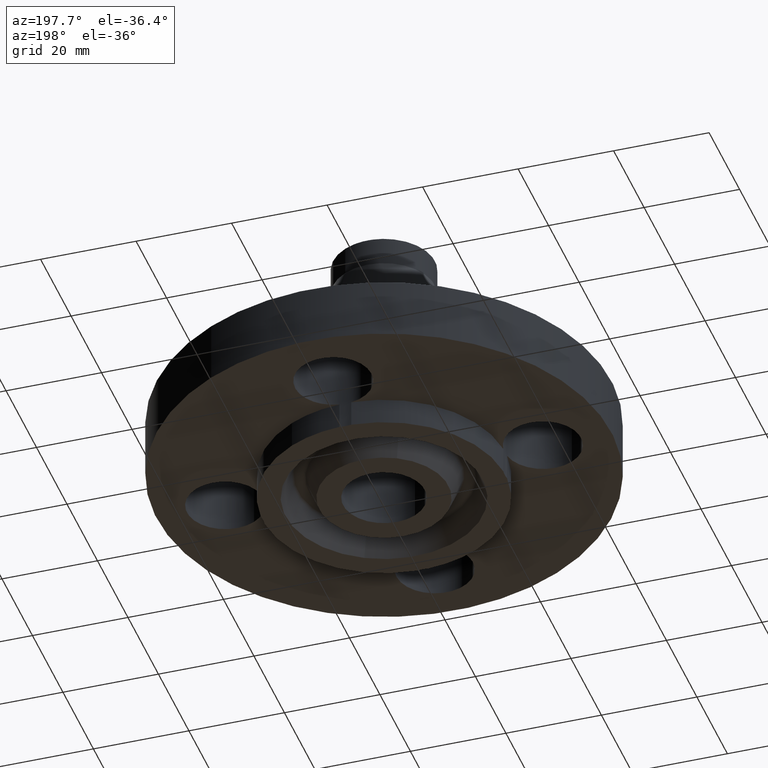
[diagram: clean part render]
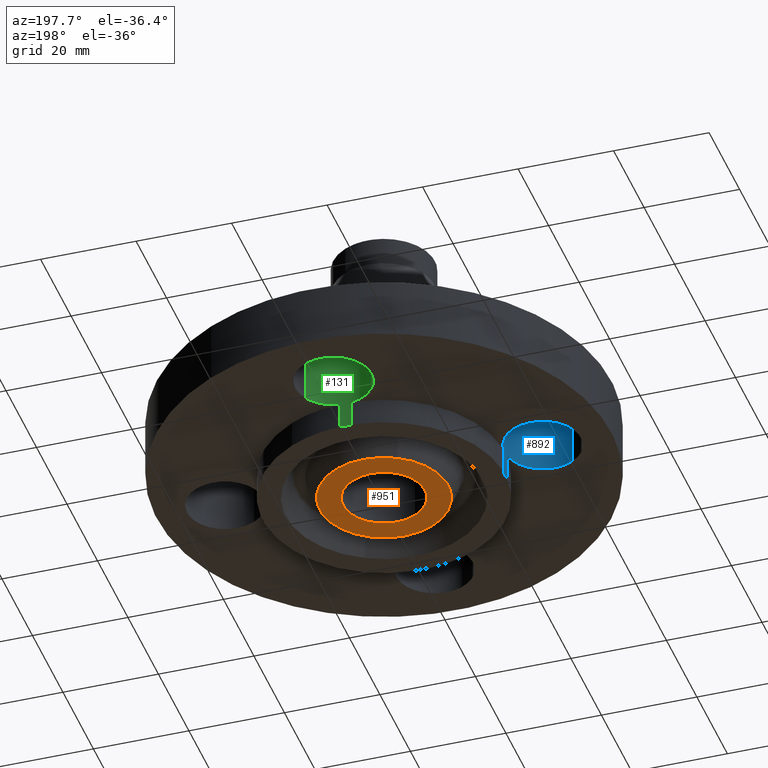
[diagram: same view with three faces highlighted in distinct colors, each labeled with its STEP entity id]
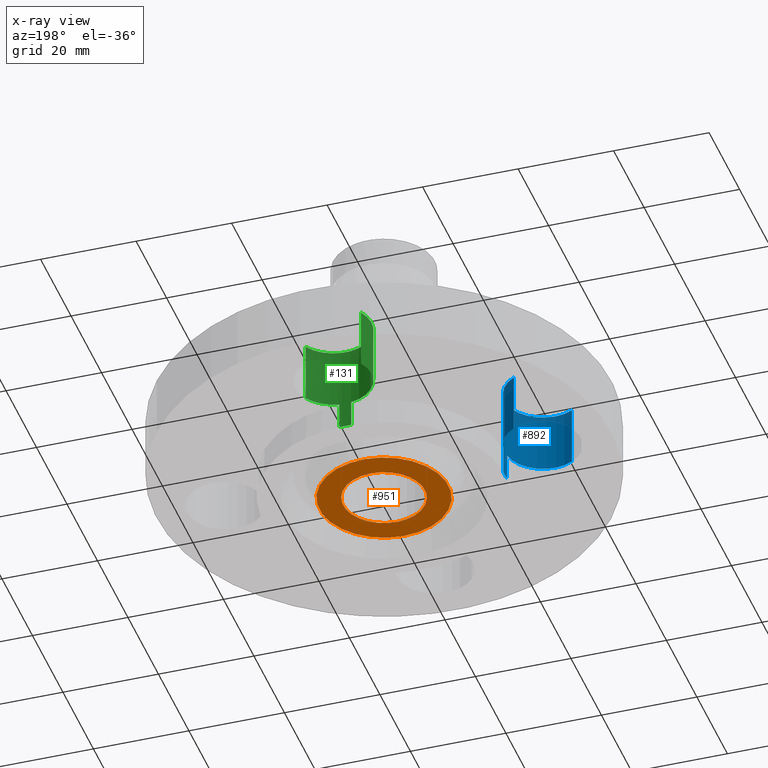
[diagram: x-ray of the same camera — body ghosted, the three highlighted faces saturated]
A machine part, auxiliary view with three faces highlighted in distinct colors.
The next image is the same camera in x-ray (body ghosted, the three faces saturated) — at least one of them is partly hidden behind the body in this view.
Their STEP definitions:

[orange] entity #951 — the highlighted planar face has unit normal (0, 0, -1).
#473=AXIS2_PLACEMENT_3D('Circle Axis2P3D',#471,#472,$) ;
#492=AXIS2_PLACEMENT_3D('Circle Axis2P3D',#490,#491,$) ;
#896=AXIS2_PLACEMENT_3D('Plane Axis2P3D',#893,#894,#895) ;
#931=AXIS2_PLACEMENT_3D('Circle Axis2P3D',#929,#930,$) ;
#940=AXIS2_PLACEMENT_3D('Circle Axis2P3D',#938,#939,$) ;
#468=CARTESIAN_POINT('Vertex',(-0.16156640651,-0.295745323358,-0.219000000001)) ;
#471=CARTESIAN_POINT('Axis2P3D Location',(0.,0.,-0.219000000001)) ;
#475=CARTESIAN_POINT('Vertex',(0.16156640651,0.295745323358,-0.219000000001)) ;
#490=CARTESIAN_POINT('Axis2P3D Location',(0.,0.,-0.219000000001)) ;
#893=CARTESIAN_POINT('Axis2P3D Location',(0.,0.337000000001,-0.219000000001)) ;
#929=CARTESIAN_POINT('Axis2P3D Location',(2.09805925913E-016,0.,-0.219000000001)) ;
#933=CARTESIAN_POINT('Vertex',(-0.254814673769,0.466435131647,-0.219000000001)) ;
#935=CARTESIAN_POINT('Vertex',(0.254814673769,-0.466435131647,-0.219000000001)) ;
#938=CARTESIAN_POINT('Axis2P3D Location',(0.,0.,-0.219000000001)) ;
#472=DIRECTION('Axis2P3D Direction',(0.,0.,-0.0393700787402)) ;
#491=DIRECTION('Axis2P3D Direction',(0.,0.,-0.0393700787402)) ;
#894=DIRECTION('Axis2P3D Direction',(0.,0.,-0.0393700787402)) ;
#895=DIRECTION('Axis2P3D XDirection',(0.0393700787402,0.,0.)) ;
#930=DIRECTION('Axis2P3D Direction',(0.,0.,-0.0393700787402)) ;
#939=DIRECTION('Axis2P3D Direction',(0.,0.,-0.0393700787402)) ;
#944=ORIENTED_EDGE('',*,*,#937,.T.) ;
#945=ORIENTED_EDGE('',*,*,#942,.T.) ;
#948=ORIENTED_EDGE('',*,*,#494,.F.) ;
#949=ORIENTED_EDGE('',*,*,#477,.F.) ;
#950=FACE_BOUND('',#947,.T.) ;
#951=ADVANCED_FACE('PartBody',(#946,#950),#897,.T.) ;
#474=CIRCLE('generated circle',#473,0.337000000001) ;
#493=CIRCLE('generated circle',#492,0.337000000001) ;
#932=CIRCLE('generated circle',#931,0.531500000002) ;
#941=CIRCLE('generated circle',#940,0.531500000002) ;
#477=EDGE_CURVE('',#469,#476,#474,.T.) ;
#494=EDGE_CURVE('',#476,#469,#493,.T.) ;
#937=EDGE_CURVE('',#934,#936,#932,.T.) ;
#942=EDGE_CURVE('',#936,#934,#941,.T.) ;
#943=EDGE_LOOP('',(#944,#945)) ;
#947=EDGE_LOOP('',(#948,#949)) ;
#946=FACE_OUTER_BOUND('',#943,.T.) ;
#897=PLANE('',#896) ;
#469=VERTEX_POINT('',#468) ;
#476=VERTEX_POINT('',#475) ;
#934=VERTEX_POINT('',#933) ;
#936=VERTEX_POINT('',#935) ;

[blue] entity #892 — the highlighted cylindrical surface (partial cylindrical patch) has radius 8.001 mm, axis along (0, 0, -1).
#680=AXIS2_PLACEMENT_3D('Circle Axis2P3D',#678,#679,$) ;
#694=AXIS2_PLACEMENT_3D('Circle Axis2P3D',#692,#693,$) ;
#844=AXIS2_PLACEMENT_3D('Cylinder Axis2P3D',#841,#842,#843) ;
#874=AXIS2_PLACEMENT_3D('Circle Axis2P3D',#872,#873,$) ;
#879=AXIS2_PLACEMENT_3D('Circle Axis2P3D',#877,#878,$) ;
#508=CARTESIAN_POINT('Vertex',(-0.998807251912,-0.0488269754871,-0.219000000001)) ;
#522=CARTESIAN_POINT('Vertex',(-0.998807251912,-0.0488269754871,0.)) ;
#525=CARTESIAN_POINT('Line Origine',(-0.998807251912,-0.0488269754871,-0.1095)) ;
#541=CARTESIAN_POINT('Vertex',(-0.998807251912,0.0488269754871,0.)) ;
#548=CARTESIAN_POINT('Vertex',(-0.998807251912,0.0488269754871,-0.219000000001)) ;
#551=CARTESIAN_POINT('Line Origine',(-0.998807251912,0.0488269754871,-0.1095)) ;
#678=CARTESIAN_POINT('Axis2P3D Location',(-1.31000000001,0.,0.)) ;
#682=CARTESIAN_POINT('Vertex',(-1.15898095534,0.276438506997,0.)) ;
#689=CARTESIAN_POINT('Vertex',(-1.46101904467,-0.276438506997,0.)) ;
#692=CARTESIAN_POINT('Axis2P3D Location',(-1.31000000001,0.,0.)) ;
#841=CARTESIAN_POINT('Axis2P3D Location',(-1.31000000001,-1.00772478758E-016,0.496062992128)) ;
#846=CARTESIAN_POINT('Line Origine',(-1.46101904467,-0.276438506997,0.140500000001)) ;
#850=CARTESIAN_POINT('Vertex',(-1.46101904467,-0.276438506997,0.500000000002)) ;
#853=CARTESIAN_POINT('Line Origine',(-1.15898095534,0.276438506997,0.140500000001)) ;
#857=CARTESIAN_POINT('Vertex',(-1.15898095534,0.276438506997,0.500000000002)) ;
#872=CARTESIAN_POINT('Axis2P3D Location',(-1.31000000001,-1.00772478758E-016,-0.219000000001)) ;
#877=CARTESIAN_POINT('Axis2P3D Location',(-1.31000000001,-1.00772478758E-016,0.500000000002)) ;
#526=DIRECTION('Vector Direction',(0.,0.,-0.0393700787402)) ;
#552=DIRECTION('Vector Direction',(0.,0.,-0.0393700787402)) ;
#679=DIRECTION('Axis2P3D Direction',(0.,0.,-0.0393700787402)) ;
#693=DIRECTION('Axis2P3D Direction',(0.,0.,-0.0393700787402)) ;
#842=DIRECTION('Axis2P3D Direction',(0.,0.,-0.0393700787402)) ;
#843=DIRECTION('Axis2P3D XDirection',(0.0188750212049,0.0345504945626,0.)) ;
#847=DIRECTION('Vector Direction',(0.,0.,-0.0393700787402)) ;
#854=DIRECTION('Vector Direction',(0.,0.,-0.0393700787402)) ;
#873=DIRECTION('Axis2P3D Direction',(0.,0.,-0.0393700787402)) ;
#878=DIRECTION('Axis2P3D Direction',(0.,0.,-0.0393700787402)) ;
#527=VECTOR('Line Direction',#526,0.0393700787402) ;
#553=VECTOR('Line Direction',#552,0.0393700787402) ;
#848=VECTOR('Line Direction',#847,0.0393700787402) ;
#855=VECTOR('Line Direction',#854,0.0393700787402) ;
#883=ORIENTED_EDGE('',*,*,#859,.F.) ;
#884=ORIENTED_EDGE('',*,*,#684,.T.) ;
#885=ORIENTED_EDGE('',*,*,#555,.T.) ;
#886=ORIENTED_EDGE('',*,*,#876,.T.) ;
#887=ORIENTED_EDGE('',*,*,#529,.F.) ;
#888=ORIENTED_EDGE('',*,*,#696,.T.) ;
#889=ORIENTED_EDGE('',*,*,#852,.T.) ;
#890=ORIENTED_EDGE('',*,*,#881,.F.) ;
#892=ADVANCED_FACE('PartBody',(#891),#845,.F.) ;
#681=CIRCLE('generated circle',#680,0.315000000001) ;
#695=CIRCLE('generated circle',#694,0.315000000001) ;
#875=CIRCLE('generated circle',#874,0.315000000001) ;
#880=CIRCLE('generated circle',#879,0.315000000001) ;
#845=CYLINDRICAL_SURFACE('generated cylinder',#844,0.315000000001) ;
#529=EDGE_CURVE('',#523,#509,#528,.T.) ;
#555=EDGE_CURVE('',#542,#549,#554,.T.) ;
#684=EDGE_CURVE('',#683,#542,#681,.T.) ;
#696=EDGE_CURVE('',#523,#690,#695,.T.) ;
#852=EDGE_CURVE('',#690,#851,#849,.F.) ;
#859=EDGE_CURVE('',#683,#858,#856,.F.) ;
#876=EDGE_CURVE('',#549,#509,#875,.T.) ;
#881=EDGE_CURVE('',#858,#851,#880,.T.) ;
#882=EDGE_LOOP('',(#883,#884,#885,#886,#887,#888,#889,#890)) ;
#891=FACE_OUTER_BOUND('',#882,.T.) ;
#528=LINE('Line',#525,#527) ;
#554=LINE('Line',#551,#553) ;
#849=LINE('Line',#846,#848) ;
#856=LINE('Line',#853,#855) ;
#509=VERTEX_POINT('',#508) ;
#523=VERTEX_POINT('',#522) ;
#542=VERTEX_POINT('',#541) ;
#549=VERTEX_POINT('',#548) ;
#683=VERTEX_POINT('',#682) ;
#690=VERTEX_POINT('',#689) ;
#851=VERTEX_POINT('',#850) ;
#858=VERTEX_POINT('',#857) ;

[green] entity #131 — the highlighted cylindrical surface (partial cylindrical patch) has radius 8.001 mm, axis along (0, -0, -1).
#38=AXIS2_PLACEMENT_3D('Cylinder Axis2P3D',#35,#36,#37) ;
#85=AXIS2_PLACEMENT_3D('Circle Axis2P3D',#83,#84,$) ;
#99=AXIS2_PLACEMENT_3D('Circle Axis2P3D',#97,#98,$) ;
#113=AXIS2_PLACEMENT_3D('Circle Axis2P3D',#111,#112,$) ;
#118=AXIS2_PLACEMENT_3D('Circle Axis2P3D',#116,#117,$) ;
#35=CARTESIAN_POINT('Axis2P3D Location',(0.,1.31000000001,0.496062992128)) ;
#40=CARTESIAN_POINT('Line Origine',(-0.276438506997,1.46101904467,0.140500000001)) ;
#44=CARTESIAN_POINT('Vertex',(-0.276438506997,1.46101904467,0.)) ;
#46=CARTESIAN_POINT('Vertex',(-0.276438506997,1.46101904467,0.500000000002)) ;
#53=CARTESIAN_POINT('Vertex',(0.276438506997,1.15898095534,0.)) ;
#56=CARTESIAN_POINT('Line Origine',(0.276438506997,1.15898095534,0.140500000001)) ;
#60=CARTESIAN_POINT('Vertex',(0.276438506997,1.15898095534,0.500000000002)) ;
#83=CARTESIAN_POINT('Axis2P3D Location',(0.,1.31000000001,0.)) ;
#87=CARTESIAN_POINT('Vertex',(0.0488269754871,0.998807251912,0.)) ;
#90=CARTESIAN_POINT('Line Origine',(0.0488269754871,0.998807251912,0.140500000001)) ;
#94=CARTESIAN_POINT('Vertex',(0.0488269754871,0.998807251912,-0.219000000001)) ;
#97=CARTESIAN_POINT('Axis2P3D Location',(0.,1.31000000001,-0.219000000001)) ;
#101=CARTESIAN_POINT('Vertex',(-0.0488269754871,0.998807251912,-0.219000000001)) ;
#104=CARTESIAN_POINT('Line Origine',(-0.0488269754871,0.998807251912,0.140500000001)) ;
#108=CARTESIAN_POINT('Vertex',(-0.0488269754871,0.998807251912,0.)) ;
#111=CARTESIAN_POINT('Axis2P3D Location',(0.,1.31000000001,0.)) ;
#116=CARTESIAN_POINT('Axis2P3D Location',(0.,1.31000000001,0.500000000002)) ;
#36=DIRECTION('Axis2P3D Direction',(0.,-0.,-0.0393700787402)) ;
#37=DIRECTION('Axis2P3D XDirection',(0.0345504945626,-0.0188750212049,0.)) ;
#41=DIRECTION('Vector Direction',(0.,0.,-0.0393700787402)) ;
#57=DIRECTION('Vector Direction',(0.,0.,-0.0393700787402)) ;
#84=DIRECTION('Axis2P3D Direction',(0.,-0.,-0.0393700787402)) ;
#91=DIRECTION('Vector Direction',(0.,0.,-0.0393700787402)) ;
#98=DIRECTION('Axis2P3D Direction',(0.,-0.,-0.0393700787402)) ;
#105=DIRECTION('Vector Direction',(0.,0.,-0.0393700787402)) ;
#112=DIRECTION('Axis2P3D Direction',(0.,-0.,-0.0393700787402)) ;
#117=DIRECTION('Axis2P3D Direction',(0.,-0.,-0.0393700787402)) ;
#42=VECTOR('Line Direction',#41,0.0393700787402) ;
#58=VECTOR('Line Direction',#57,0.0393700787402) ;
#92=VECTOR('Line Direction',#91,0.0393700787402) ;
#106=VECTOR('Line Direction',#105,0.0393700787402) ;
#122=ORIENTED_EDGE('',*,*,#62,.F.) ;
#123=ORIENTED_EDGE('',*,*,#89,.T.) ;
#124=ORIENTED_EDGE('',*,*,#96,.T.) ;
#125=ORIENTED_EDGE('',*,*,#103,.T.) ;
#126=ORIENTED_EDGE('',*,*,#110,.F.) ;
#127=ORIENTED_EDGE('',*,*,#115,.T.) ;
#128=ORIENTED_EDGE('',*,*,#48,.T.) ;
#129=ORIENTED_EDGE('',*,*,#120,.F.) ;
#131=ADVANCED_FACE('PartBody',(#130),#39,.F.) ;
#86=CIRCLE('generated circle',#85,0.315000000001) ;
#100=CIRCLE('generated circle',#99,0.315000000001) ;
#114=CIRCLE('generated circle',#113,0.315000000001) ;
#119=CIRCLE('generated circle',#118,0.315000000001) ;
#39=CYLINDRICAL_SURFACE('generated cylinder',#38,0.315000000001) ;
#48=EDGE_CURVE('',#45,#47,#43,.F.) ;
#62=EDGE_CURVE('',#54,#61,#59,.F.) ;
#89=EDGE_CURVE('',#54,#88,#86,.T.) ;
#96=EDGE_CURVE('',#88,#95,#93,.T.) ;
#103=EDGE_CURVE('',#95,#102,#100,.T.) ;
#110=EDGE_CURVE('',#109,#102,#107,.T.) ;
#115=EDGE_CURVE('',#109,#45,#114,.T.) ;
#120=EDGE_CURVE('',#61,#47,#119,.T.) ;
#121=EDGE_LOOP('',(#122,#123,#124,#125,#126,#127,#128,#129)) ;
#130=FACE_OUTER_BOUND('',#121,.T.) ;
#43=LINE('Line',#40,#42) ;
#59=LINE('Line',#56,#58) ;
#93=LINE('Line',#90,#92) ;
#107=LINE('Line',#104,#106) ;
#45=VERTEX_POINT('',#44) ;
#47=VERTEX_POINT('',#46) ;
#54=VERTEX_POINT('',#53) ;
#61=VERTEX_POINT('',#60) ;
#88=VERTEX_POINT('',#87) ;
#95=VERTEX_POINT('',#94) ;
#102=VERTEX_POINT('',#101) ;
#109=VERTEX_POINT('',#108) ;